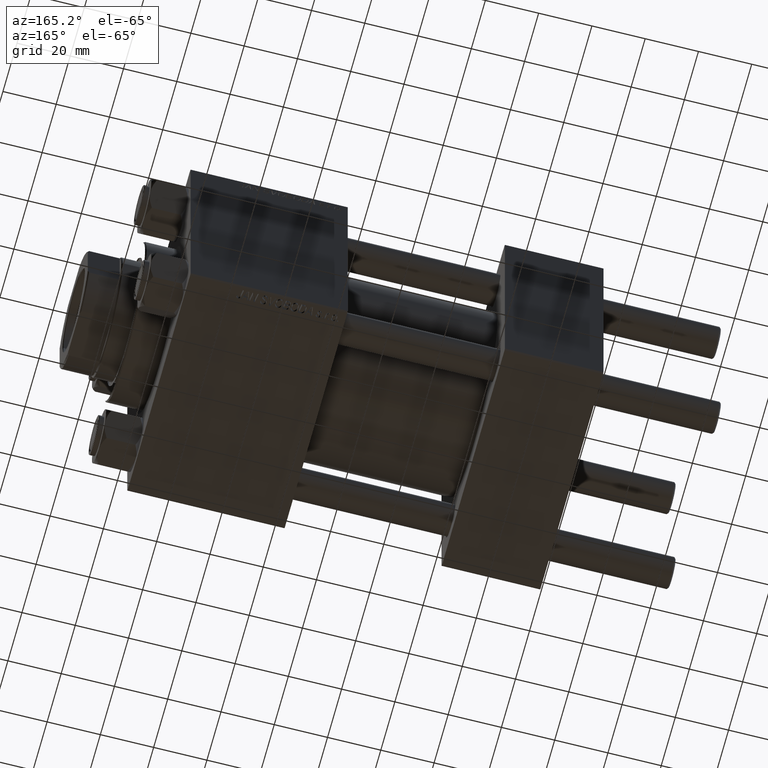
[diagram: clean part render]
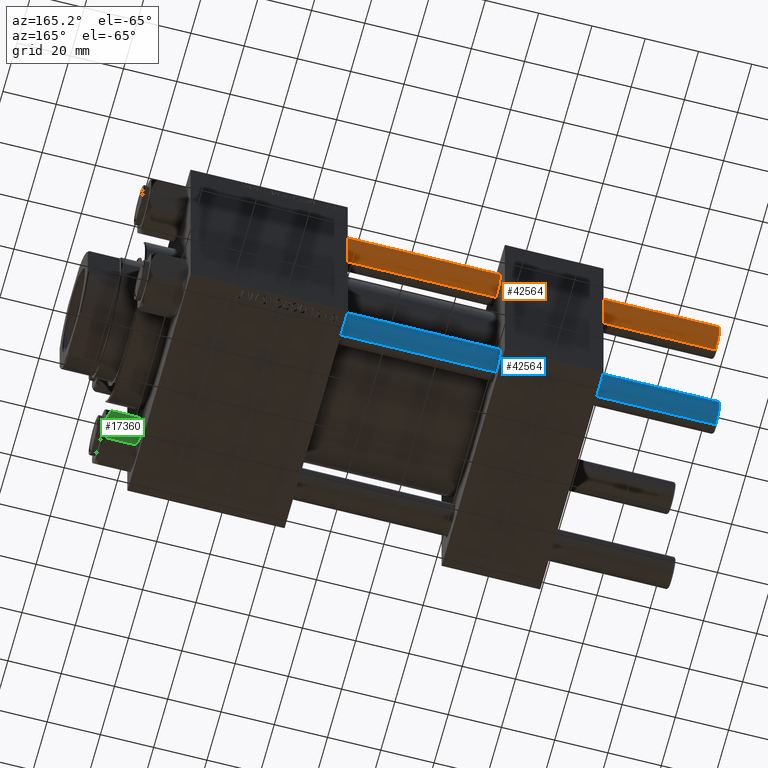
[diagram: same view with three faces highlighted in distinct colors, each labeled with its STEP entity id]
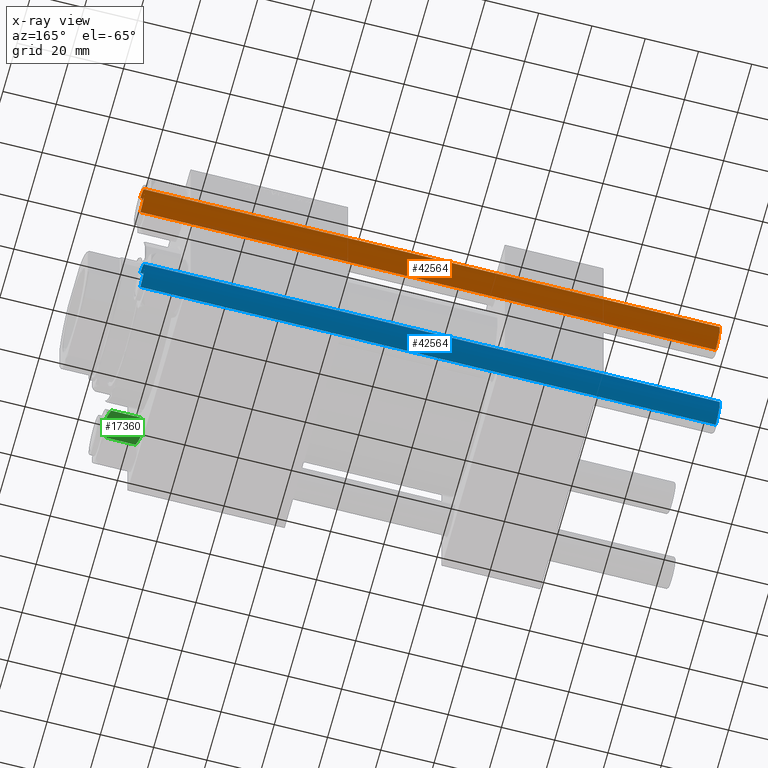
[diagram: x-ray of the same camera — body ghosted, the three highlighted faces saturated]
A machine part, auxiliary view with three faces highlighted in distinct colors.
The next image is the same camera in x-ray (body ghosted, the three faces saturated) — at least one of them is partly hidden behind the body in this view.
Their STEP definitions:

[orange] entity #42564 — the highlighted cylindrical surface (edge-blend (fillet) strip) has radius 6 mm, axis along (-1, -0, -0).
#2911 = CYLINDRICAL_SURFACE ( 'NONE', #22196, 6.000000000000000888 ) ;
#3015 = ORIENTED_EDGE ( 'NONE', *, *, #38930, .F. ) ;
#3163 = FACE_OUTER_BOUND ( 'NONE', #11643, .T. ) ;
#3254 = VERTEX_POINT ( 'NONE', #17007 ) ;
#4109 = AXIS2_PLACEMENT_3D ( 'NONE', #17465, #16966, #32328 ) ;
#5721 = EDGE_CURVE ( 'NONE', #35648, #3254, #36293, .T. ) ;
#6182 = CIRCLE ( 'NONE', #7819, 6.000000000000000888 ) ;
#6333 = ORIENTED_EDGE ( 'NONE', *, *, #5721, .T. ) ;
#7819 = AXIS2_PLACEMENT_3D ( 'NONE', #47247, #9197, #43954 ) ;
#9197 = DIRECTION ( 'NONE',  ( 0.000000000000000000, 0.000000000000000000, -1.000000000000000000 ) ) ;
#10484 = VERTEX_POINT ( 'NONE', #23360 ) ;
#11430 = DIRECTION ( 'NONE',  ( -0.000000000000000000, -0.000000000000000000, -1.000000000000000000 ) ) ;
#11643 = EDGE_LOOP ( 'NONE', ( #32379, #25239, #6333, #3015 ) ) ;
#16966 = DIRECTION ( 'NONE',  ( -0.000000000000000000, -0.000000000000000000, 1.000000000000000000 ) ) ;
#17007 = CARTESIAN_POINT ( 'NONE',  ( -6.000000000000000888, 0.000000000000000000, 0.4999999999999449329 ) ) ;
#17278 = CARTESIAN_POINT ( 'NONE',  ( 6.000000000000000888, 7.347880794884120722E-16, 216.4999999999999716 ) ) ;
#17465 = CARTESIAN_POINT ( 'NONE',  ( 0.000000000000000000, 0.000000000000000000, 0.4999999999999449329 ) ) ;
#21826 = CARTESIAN_POINT ( 'NONE',  ( 0.000000000000000000, 0.000000000000000000, 217.0000000000000000 ) ) ;
#22196 = AXIS2_PLACEMENT_3D ( 'NONE', #21826, #49299, #22329 ) ;
#22329 = DIRECTION ( 'NONE',  ( -1.000000000000000000, 0.000000000000000000, 0.000000000000000000 ) ) ;
#22358 = EDGE_CURVE ( 'NONE', #40562, #35648, #41676, .T. ) ;
#23360 = CARTESIAN_POINT ( 'NONE',  ( -6.000000000000000888, 0.000000000000000000, 216.4999999999999716 ) ) ;
#24815 = LINE ( 'NONE', #27861, #27932 ) ;
#25239 = ORIENTED_EDGE ( 'NONE', *, *, #22358, .T. ) ;
#26723 = VECTOR ( 'NONE', #11430, 1000.000000000000000 ) ;
#27861 = CARTESIAN_POINT ( 'NONE',  ( -6.000000000000000888, 0.000000000000000000, 217.0000000000000000 ) ) ;
#27932 = VECTOR ( 'NONE', #35903, 1000.000000000000000 ) ;
#32328 = DIRECTION ( 'NONE',  ( 1.000000000000000000, 0.000000000000000000, 0.000000000000000000 ) ) ;
#32379 = ORIENTED_EDGE ( 'NONE', *, *, #46150, .T. ) ;
#35648 = VERTEX_POINT ( 'NONE', #49725 ) ;
#35903 = DIRECTION ( 'NONE',  ( -0.000000000000000000, -0.000000000000000000, -1.000000000000000000 ) ) ;
#36293 = CIRCLE ( 'NONE', #4109, 6.000000000000000888 ) ;
#38930 = EDGE_CURVE ( 'NONE', #10484, #3254, #24815, .T. ) ;
#40562 = VERTEX_POINT ( 'NONE', #17278 ) ;
#41676 = LINE ( 'NONE', #46188, #26723 ) ;
#42564 = ADVANCED_FACE ( 'NONE', ( #3163 ), #2911, .T. ) ;
#43954 = DIRECTION ( 'NONE',  ( 1.000000000000000000, 0.000000000000000000, 0.000000000000000000 ) ) ;
#46150 = EDGE_CURVE ( 'NONE', #10484, #40562, #6182, .T. ) ;
#46188 = CARTESIAN_POINT ( 'NONE',  ( 6.000000000000000888, 7.347880794884120722E-16, 217.0000000000000000 ) ) ;
#47247 = CARTESIAN_POINT ( 'NONE',  ( 0.000000000000000000, 0.000000000000000000, 216.4999999999999716 ) ) ;
#49299 = DIRECTION ( 'NONE',  ( -0.000000000000000000, -0.000000000000000000, -1.000000000000000000 ) ) ;
#49725 = CARTESIAN_POINT ( 'NONE',  ( 6.000000000000000888, 7.347880794884120722E-16, 0.4999999999999449329 ) ) ;

[blue] entity #42564 — the highlighted cylindrical surface (edge-blend (fillet) strip) has radius 6 mm, axis along (1, 0, -0).
#2911 = CYLINDRICAL_SURFACE ( 'NONE', #22196, 6.000000000000000888 ) ;
#3015 = ORIENTED_EDGE ( 'NONE', *, *, #38930, .F. ) ;
#3163 = FACE_OUTER_BOUND ( 'NONE', #11643, .T. ) ;
#3254 = VERTEX_POINT ( 'NONE', #17007 ) ;
#4109 = AXIS2_PLACEMENT_3D ( 'NONE', #17465, #16966, #32328 ) ;
#5721 = EDGE_CURVE ( 'NONE', #35648, #3254, #36293, .T. ) ;
#6182 = CIRCLE ( 'NONE', #7819, 6.000000000000000888 ) ;
#6333 = ORIENTED_EDGE ( 'NONE', *, *, #5721, .T. ) ;
#7819 = AXIS2_PLACEMENT_3D ( 'NONE', #47247, #9197, #43954 ) ;
#9197 = DIRECTION ( 'NONE',  ( 0.000000000000000000, 0.000000000000000000, -1.000000000000000000 ) ) ;
#10484 = VERTEX_POINT ( 'NONE', #23360 ) ;
#11430 = DIRECTION ( 'NONE',  ( -0.000000000000000000, -0.000000000000000000, -1.000000000000000000 ) ) ;
#11643 = EDGE_LOOP ( 'NONE', ( #32379, #25239, #6333, #3015 ) ) ;
#16966 = DIRECTION ( 'NONE',  ( -0.000000000000000000, -0.000000000000000000, 1.000000000000000000 ) ) ;
#17007 = CARTESIAN_POINT ( 'NONE',  ( -6.000000000000000888, 0.000000000000000000, 0.4999999999999449329 ) ) ;
#17278 = CARTESIAN_POINT ( 'NONE',  ( 6.000000000000000888, 7.347880794884120722E-16, 216.4999999999999716 ) ) ;
#17465 = CARTESIAN_POINT ( 'NONE',  ( 0.000000000000000000, 0.000000000000000000, 0.4999999999999449329 ) ) ;
#21826 = CARTESIAN_POINT ( 'NONE',  ( 0.000000000000000000, 0.000000000000000000, 217.0000000000000000 ) ) ;
#22196 = AXIS2_PLACEMENT_3D ( 'NONE', #21826, #49299, #22329 ) ;
#22329 = DIRECTION ( 'NONE',  ( -1.000000000000000000, 0.000000000000000000, 0.000000000000000000 ) ) ;
#22358 = EDGE_CURVE ( 'NONE', #40562, #35648, #41676, .T. ) ;
#23360 = CARTESIAN_POINT ( 'NONE',  ( -6.000000000000000888, 0.000000000000000000, 216.4999999999999716 ) ) ;
#24815 = LINE ( 'NONE', #27861, #27932 ) ;
#25239 = ORIENTED_EDGE ( 'NONE', *, *, #22358, .T. ) ;
#26723 = VECTOR ( 'NONE', #11430, 1000.000000000000000 ) ;
#27861 = CARTESIAN_POINT ( 'NONE',  ( -6.000000000000000888, 0.000000000000000000, 217.0000000000000000 ) ) ;
#27932 = VECTOR ( 'NONE', #35903, 1000.000000000000000 ) ;
#32328 = DIRECTION ( 'NONE',  ( 1.000000000000000000, 0.000000000000000000, 0.000000000000000000 ) ) ;
#32379 = ORIENTED_EDGE ( 'NONE', *, *, #46150, .T. ) ;
#35648 = VERTEX_POINT ( 'NONE', #49725 ) ;
#35903 = DIRECTION ( 'NONE',  ( -0.000000000000000000, -0.000000000000000000, -1.000000000000000000 ) ) ;
#36293 = CIRCLE ( 'NONE', #4109, 6.000000000000000888 ) ;
#38930 = EDGE_CURVE ( 'NONE', #10484, #3254, #24815, .T. ) ;
#40562 = VERTEX_POINT ( 'NONE', #17278 ) ;
#41676 = LINE ( 'NONE', #46188, #26723 ) ;
#42564 = ADVANCED_FACE ( 'NONE', ( #3163 ), #2911, .T. ) ;
#43954 = DIRECTION ( 'NONE',  ( 1.000000000000000000, 0.000000000000000000, 0.000000000000000000 ) ) ;
#46150 = EDGE_CURVE ( 'NONE', #10484, #40562, #6182, .T. ) ;
#46188 = CARTESIAN_POINT ( 'NONE',  ( 6.000000000000000888, 7.347880794884120722E-16, 217.0000000000000000 ) ) ;
#47247 = CARTESIAN_POINT ( 'NONE',  ( 0.000000000000000000, 0.000000000000000000, 216.4999999999999716 ) ) ;
#49299 = DIRECTION ( 'NONE',  ( -0.000000000000000000, -0.000000000000000000, -1.000000000000000000 ) ) ;
#49725 = CARTESIAN_POINT ( 'NONE',  ( 6.000000000000000888, 7.347880794884120722E-16, 0.4999999999999449329 ) ) ;

[green] entity #17360 — the highlighted planar face has unit normal (0, -0.8135, 0.5816).
#194 = CARTESIAN_POINT ( 'NONE',  ( -8.202333004087893897, -5.919572880271055659, -13.96005881939308679 ) ) ;
#281 = CARTESIAN_POINT ( 'NONE',  ( -8.714999999999992752, -5.031607595987588333, -14.00000000000000000 ) ) ;
#2206 = CARTESIAN_POINT ( 'NONE',  ( -11.61999999999999922, 6.036006524886462134E-17, -14.00000000000000000 ) ) ;
#2414 = AXIS2_PLACEMENT_3D ( 'NONE', #16944, #24516, #39891 ) ;
#2615 = CARTESIAN_POINT ( 'NONE',  ( -7.713000053756299046, -6.767122412062954062, -0.1545239700039889863 ) ) ;
#2802 = ORIENTED_EDGE ( 'NONE', *, *, #13085, .F. ) ;
#2964 = CARTESIAN_POINT ( 'NONE',  ( -7.700834831386339729, -6.788193195293098725, -13.80960203119265017 ) ) ;
#3476 = CARTESIAN_POINT ( 'NONE',  ( -7.455303369716800077, -7.213466161761385109, -13.69973261901325046 ) ) ;
#3669 = ORIENTED_EDGE ( 'NONE', *, *, #40161, .F. ) ;
#3754 = B_SPLINE_CURVE_WITH_KNOTS ( 'NONE', 3,
 ( #42136, #11638, #49440, #8101, #22964, #14916 ),
 .UNSPECIFIED., .F., .F.,
 ( 4, 2, 4 ),
 ( 0.006022845781655594179, 0.009013049135303641962, 0.01200325248895168888 ),
 .UNSPECIFIED. ) ;
#4102 = ORIENTED_EDGE ( 'NONE', *, *, #16185, .F. ) ;
#4551 = CARTESIAN_POINT ( 'NONE',  ( -9.227666995912098713, -4.143642311704126335, -0.03994118060691215222 ) ) ;
#5477 = VERTEX_POINT ( 'NONE', #5995 ) ;
#5761 = B_SPLINE_CURVE_WITH_KNOTS ( 'NONE', 3,
 ( #46395, #11882, #42631, #33625, #22043, #4551, #27009, #35310 ),
 .UNSPECIFIED., .F., .F.,
 ( 4, 2, 2, 4 ),
 ( 2.544312114904568338E-07, 0.003011550106433539924, 0.004517197944044564449, 0.006022845781655589842 ),
 .UNSPECIFIED. ) ;
#5995 = CARTESIAN_POINT ( 'NONE',  ( -5.809999999999990727, -10.06321519197518199, -1.556784808024822553 ) ) ;
#8101 = CARTESIAN_POINT ( 'NONE',  ( -10.69662495661649793, -1.599332489581332339, -13.28854452935654429 ) ) ;
#10127 = VERTEX_POINT ( 'NONE', #31714 ) ;
#10896 = CARTESIAN_POINT ( 'NONE',  ( -5.809999999999990727, -10.06321519197518199, -12.44321519197517745 ) ) ;
#11136 = CARTESIAN_POINT ( 'NONE',  ( -11.61999999999999922, -1.565987599140169687E-18, -1.556784808024820776 ) ) ;
#11638 = CARTESIAN_POINT ( 'NONE',  ( -9.220295946303425083, -4.156409344131452244, -13.99999999999999645 ) ) ;
#11832 = ORIENTED_EDGE ( 'NONE', *, *, #43908, .F. ) ;
#11882 = CARTESIAN_POINT ( 'NONE',  ( -11.16445427487471065, -0.7890283410877966253, -1.101239082899537314 ) ) ;
#13085 = EDGE_CURVE ( 'NONE', #16203, #10127, #5761, .T. ) ;
#14223 = CARTESIAN_POINT ( 'NONE',  ( -5.809999999999990727, -10.06321519197518199, -1.556784808024822553 ) ) ;
#14916 = CARTESIAN_POINT ( 'NONE',  ( -11.61999999999999922, 4.243578825136429979E-17, -12.44321519197517922 ) ) ;
#16185 = EDGE_CURVE ( 'NONE', #47547, #31653, #3754, .T. ) ;
#16203 = VERTEX_POINT ( 'NONE', #11136 ) ;
#16944 = CARTESIAN_POINT ( 'NONE',  ( -5.809999999999990727, -10.06321519197518199, -14.00000000000000000 ) ) ;
#17360 = ADVANCED_FACE ( 'NONE', ( #17444 ), #20968, .F. ) ;
#17444 = FACE_OUTER_BOUND ( 'NONE', #49503, .T. ) ;
#17995 = CARTESIAN_POINT ( 'NONE',  ( -6.733375043383487579, -8.463882702393844326, -0.7114554706434568221 ) ) ;
#18351 = CARTESIAN_POINT ( 'NONE',  ( -8.460569896449610994, -5.472293462311864864, -13.99999999999999822 ) ) ;
#18873 = LINE ( 'NONE', #34250, #19830 ) ;
#19830 = VECTOR ( 'NONE', #35671, 1000.000000000000000 ) ;
#20968 = PLANE ( 'NONE',  #2414 ) ;
#22043 = CARTESIAN_POINT ( 'NONE',  ( -9.729165168613647552, -3.275021996682082825, -0.1903979688073461074 ) ) ;
#22964 = CARTESIAN_POINT ( 'NONE',  ( -11.16498164529022219, -0.7881149087337293579, -12.89823354668504329 ) ) ;
#24429 = VERTEX_POINT ( 'NONE', #10896 ) ;
#24516 = DIRECTION ( 'NONE',  ( 0.8660254037844384856, 0.5000000000000003331, 0.000000000000000000 ) ) ;
#25526 = ORIENTED_EDGE ( 'NONE', *, *, #43633, .T. ) ;
#25632 = ORIENTED_EDGE ( 'NONE', *, *, #41917, .F. ) ;
#26425 = CARTESIAN_POINT ( 'NONE',  ( -6.265545725125275744, -9.274186850887387479, -12.89876091710046246 ) ) ;
#27009 = CARTESIAN_POINT ( 'NONE',  ( -8.969430103550379840, -4.590921729663317130, -2.185345003916095664E-15 ) ) ;
#29937 = CARTESIAN_POINT ( 'NONE',  ( -8.714999999999992752, -5.031607595987588333, -14.00000000000000000 ) ) ;
#31653 = VERTEX_POINT ( 'NONE', #36154 ) ;
#31714 = CARTESIAN_POINT ( 'NONE',  ( -8.714999999999992752, -5.031607595987588333, 0.000000000000000000 ) ) ;
#33625 = CARTESIAN_POINT ( 'NONE',  ( -9.974696630283190757, -2.849749030213793777, -0.3002673809867424382 ) ) ;
#33721 = CARTESIAN_POINT ( 'NONE',  ( -5.809999999999990727, -10.06321519197518199, -12.44321519197517745 ) ) ;
#34250 = CARTESIAN_POINT ( 'NONE',  ( -5.809999999999990727, -10.06321519197518199, -14.00000000000000000 ) ) ;
#35310 = CARTESIAN_POINT ( 'NONE',  ( -8.714999999999992752, -5.031607595987588333, 0.000000000000000000 ) ) ;
#35671 = DIRECTION ( 'NONE',  ( -0.000000000000000000, -0.000000000000000000, 1.000000000000000000 ) ) ;
#36154 = CARTESIAN_POINT ( 'NONE',  ( -11.61999999999999922, 4.243578825136429979E-17, -12.44321519197517922 ) ) ;
#36747 = DIRECTION ( 'NONE',  ( -0.000000000000000000, -0.000000000000000000, 1.000000000000000000 ) ) ;
#36780 = B_SPLINE_CURVE_WITH_KNOTS ( 'NONE', 3,
 ( #42200, #37154, #2615, #17995, #48748, #14223 ),
 .UNSPECIFIED., .F., .F.,
 ( 4, 2, 4 ),
 ( 0.006022845781655589842, 0.009013049135303640227, 0.01200325248895168714 ),
 .UNSPECIFIED. ) ;
#37154 = CARTESIAN_POINT ( 'NONE',  ( -8.209704053696565751, -5.906805847843727086, -2.149769620131414261E-15 ) ) ;
#38484 = VECTOR ( 'NONE', #36747, 1000.000000000000000 ) ;
#38771 = B_SPLINE_CURVE_WITH_KNOTS ( 'NONE', 3,
 ( #33721, #26425, #42053, #3476, #2964, #194, #18351, #29937 ),
 .UNSPECIFIED., .F., .F.,
 ( 4, 2, 2, 4 ),
 ( 2.544312114902182352E-07, 0.003011550106433542959, 0.004517197944044567919, 0.006022845781655594179 ),
 .UNSPECIFIED. ) ;
#39891 = DIRECTION ( 'NONE',  ( -0.5000000000000003331, 0.8660254037844384856, 0.000000000000000000 ) ) ;
#40161 = EDGE_CURVE ( 'NONE', #31653, #16203, #47834, .T. ) ;
#41917 = EDGE_CURVE ( 'NONE', #24429, #47547, #38771, .T. ) ;
#42053 = CARTESIAN_POINT ( 'NONE',  ( -6.731401448974980717, -8.467301068182917945, -13.28585617404752917 ) ) ;
#42136 = CARTESIAN_POINT ( 'NONE',  ( -8.714999999999992752, -5.031607595987588333, -14.00000000000000000 ) ) ;
#42200 = CARTESIAN_POINT ( 'NONE',  ( -8.714999999999992752, -5.031607595987588333, 0.000000000000000000 ) ) ;
#42631 = CARTESIAN_POINT ( 'NONE',  ( -10.69859855102501101, -1.595914123792264938, -0.7141438259524708343 ) ) ;
#43633 = EDGE_CURVE ( 'NONE', #24429, #5477, #18873, .T. ) ;
#43908 = EDGE_CURVE ( 'NONE', #10127, #5477, #36780, .T. ) ;
#46395 = CARTESIAN_POINT ( 'NONE',  ( -11.61999999999999922, -1.565987599140169687E-18, -1.556784808024820776 ) ) ;
#47547 = VERTEX_POINT ( 'NONE', #281 ) ;
#47834 = LINE ( 'NONE', #2206, #38484 ) ;
#48748 = CARTESIAN_POINT ( 'NONE',  ( -6.265018354709766868, -9.275100283241449972, -1.101766453314959149 ) ) ;
#49440 = CARTESIAN_POINT ( 'NONE',  ( -9.716999946243692676, -3.296092779912225712, -13.84547602999601246 ) ) ;
#49503 = EDGE_LOOP ( 'NONE', ( #25632, #25526, #11832, #2802, #3669, #4102 ) ) ;